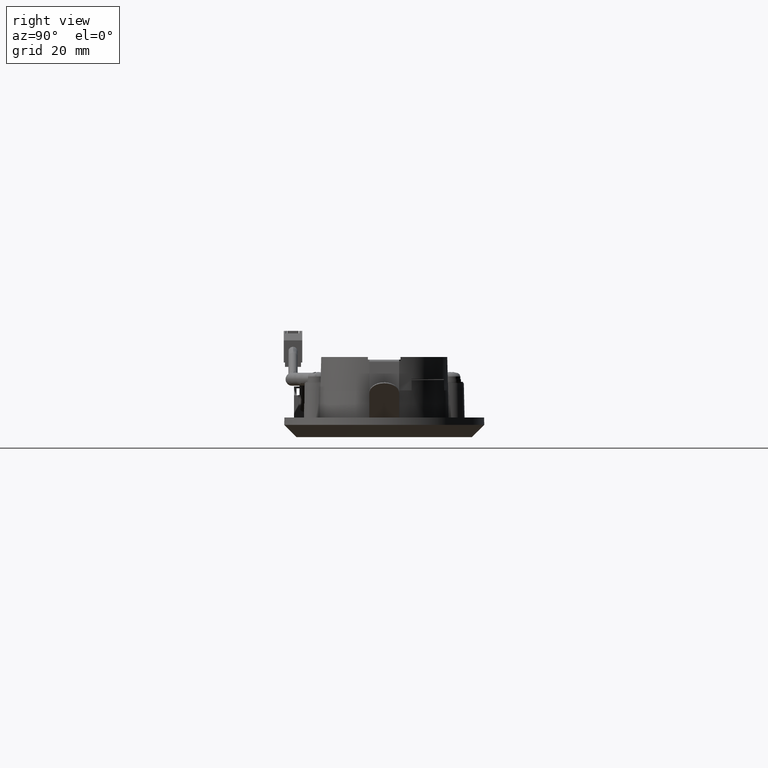
[diagram: clean part render]
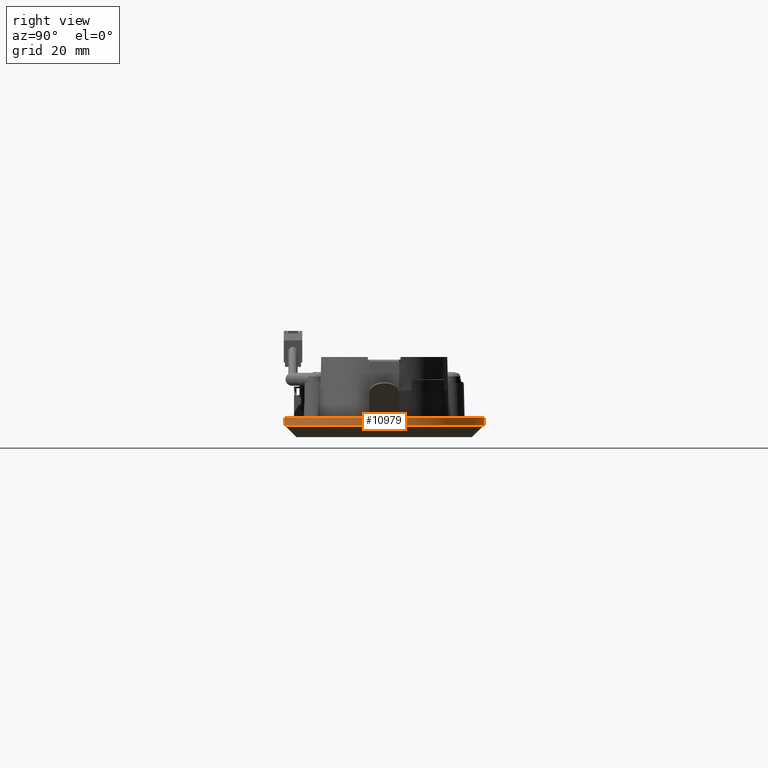
[diagram: same view with one face highlighted and labeled with its STEP entity id]
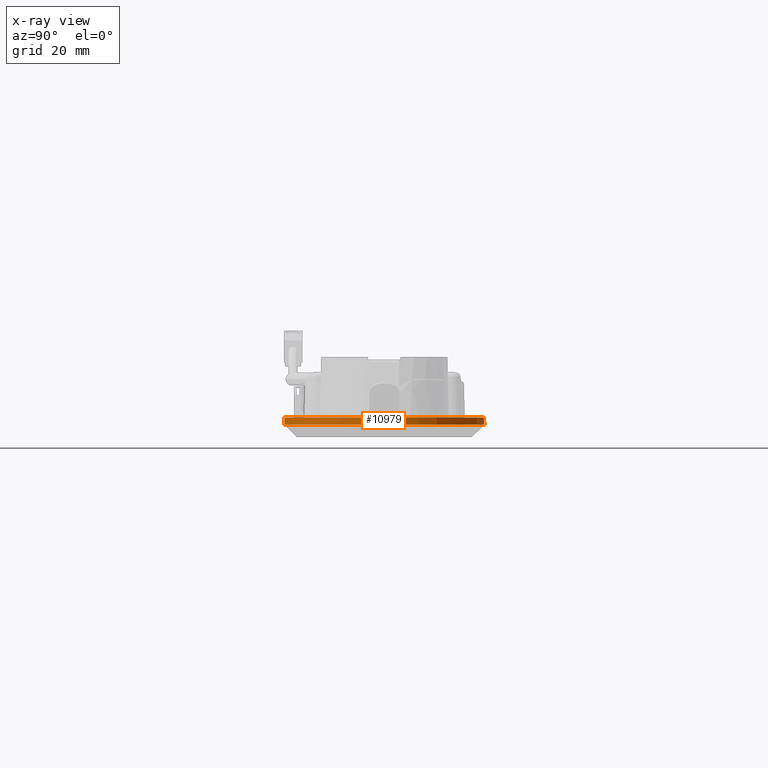
[diagram: x-ray of the same camera — body ghosted, the highlighted face saturated]
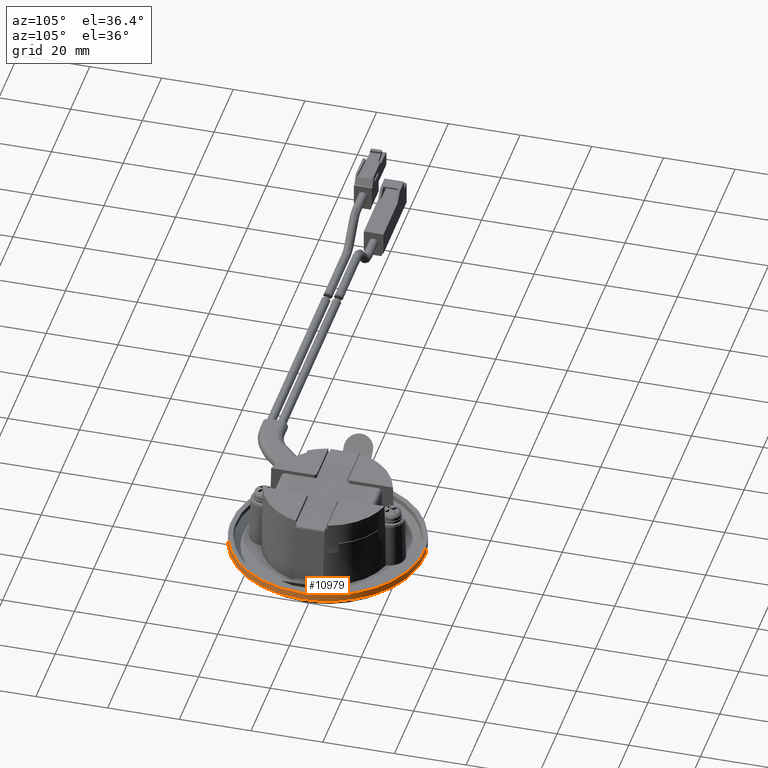
[diagram: same view with one face highlighted and labeled with its STEP entity id]
A machine part, right view. The second image highlights one B-rep face of the part: STEP entity #10979.
The next image is the same camera in x-ray: the body ghosted, the highlighted face saturated — about 0% of this face is hidden behind the body in this view.
A second angle (auxiliary view) of the same face is appended — the face is thin or edge-on in the first view.
In plain terms, the highlighted face is a freeform B-spline surface patch.
Its self-contained STEP definition (entity closure, byte-faithful):
#10802=CARTESIAN_POINT('',(2.118395623529374,-26.916768497372249,3.300001569781463));
#10803=VERTEX_POINT('',#10802);
#10809=CARTESIAN_POINT('',(1.648278269674901,-26.949641479405731,3.300002130458639));
#10810=VERTEX_POINT('',#10809);
#10811=CARTESIAN_POINT('',(2.118395623529374,-26.916768497372257,3.300001569781463));
#10812=CARTESIAN_POINT('',(1.883480397890117,-26.935256455046240,3.300001850200429));
#10813=CARTESIAN_POINT('',(1.648278269674902,-26.949641479405731,3.300002130458638));
#10821=(BOUNDED_CURVE()B_SPLINE_CURVE(2,(#10811,#10812,#10813),.UNSPECIFIED.,.F.,.U.)B_SPLINE_CURVE_WITH_KNOTS((3,3),(0.736331300634926,0.739333169009696),.UNSPECIFIED.)CURVE()GEOMETRIC_REPRESENTATION_ITEM()RATIONAL_B_SPLINE_CURVE((0.969723356176322,0.972855691321902,0.976072484816202))REPRESENTATION_ITEM(''));
#10822=EDGE_CURVE('',#10803,#10810,#10821,.T.);
#10860=CARTESIAN_POINT('',(-1.648278269674565,26.949641479405731,3.300002130458639));
#10861=VERTEX_POINT('',#10860);
#10875=CARTESIAN_POINT('',(26.999999999999371,0.0,3.299999999998135));
#10876=VERTEX_POINT('',#10875);
#10877=CARTESIAN_POINT('',(-1.648278269674565,26.949641479405734,3.300002130458639));
#10878=CARTESIAN_POINT('',(-0.824908413324494,26.999999947581912,3.300002099843240));
#10879=CARTESIAN_POINT('',(3.156398E-009,26.999999948394318,3.300002067298151));
#10880=CARTESIAN_POINT('',(27.000000001529266,26.999999974985069,3.300001002067898));
#10881=CARTESIAN_POINT('',(26.999999999999371,0.0,3.299999999998135));
#10889=(BOUNDED_CURVE()B_SPLINE_CURVE(2,(#10877,#10878,#10879,#10880,#10881),.UNSPECIFIED.,.F.,.U.)B_SPLINE_CURVE_WITH_KNOTS((3,2,3),(0.239333169009696,0.250000000000000,0.500000000000000),.UNSPECIFIED.)CURVE()GEOMETRIC_REPRESENTATION_ITEM()RATIONAL_B_SPLINE_CURVE((0.976072484816202,0.987503030146843,1.0,0.707106781186548,1.0))REPRESENTATION_ITEM(''));
#10890=EDGE_CURVE('',#10861,#10876,#10889,.T.);
#10892=CARTESIAN_POINT('',(26.999999999999371,0.0,3.299999999998135));
#10893=CARTESIAN_POINT('',(27.000000019620629,-24.958543518574711,3.300000776376340));
#10894=CARTESIAN_POINT('',(2.118395623529374,-26.916768497372257,3.300001569781463));
#10902=(BOUNDED_CURVE()B_SPLINE_CURVE(2,(#10892,#10893,#10894),.UNSPECIFIED.,.F.,.U.)B_SPLINE_CURVE_WITH_KNOTS((3,3),(0.500000000000000,0.736331300634926),.UNSPECIFIED.)CURVE()GEOMETRIC_REPRESENTATION_ITEM()RATIONAL_B_SPLINE_CURVE((1.0,0.723120658602667,0.969723356176322))REPRESENTATION_ITEM(''));
#10903=EDGE_CURVE('',#10876,#10803,#10902,.T.);
#10912=CARTESIAN_POINT('',(-1.645181829789739,26.898485148970170,5.349999999998141));
#10913=CARTESIAN_POINT('',(25.253303319180443,28.543666978760083,5.349999999998141));
#10914=CARTESIAN_POINT('',(26.898485148970341,1.645181829789910,5.349999999998141));
#10915=CARTESIAN_POINT('',(28.543666978760253,-25.253303319180272,5.349999999998141));
#10916=CARTESIAN_POINT('',(1.645181829790080,-26.898485148970170,5.349999999998141));
#10917=CARTESIAN_POINT('',(-1.648388785882198,26.950918417600079,3.248749999998135));
#10918=CARTESIAN_POINT('',(25.302529631717888,28.599307203482454,3.248749999998134));
#10919=CARTESIAN_POINT('',(26.950918417600249,1.648388785882369,3.248749999998135));
#10920=CARTESIAN_POINT('',(28.599307203482624,-25.302529631717711,3.248749999998134));
#10921=CARTESIAN_POINT('',(1.648388785882540,-26.950918417600079,3.248749999998135));
#10929=(BOUNDED_SURFACE()B_SPLINE_SURFACE(2,1,((#10912,#10917),(#10913,#10918),(#10914,#10919),(#10915,#10920),(#10916,#10921)),.UNSPECIFIED.,.F.,.F.,.U.)B_SPLINE_SURFACE_WITH_KNOTS((3,2,3),(2,2),(0.0,44.737187580800096,89.474375161600193),(0.0,2.101906538056967),.UNSPECIFIED.)GEOMETRIC_REPRESENTATION_ITEM()RATIONAL_B_SPLINE_SURFACE(((1.0,1.0),(0.707106781186548,0.707106781186548),(1.0,1.0),(0.707106781186548,0.707106781186548),(1.0,1.0)))REPRESENTATION_ITEM('')SURFACE());
#10930=ORIENTED_EDGE('',*,*,#10890,.F.);
#10931=CARTESIAN_POINT('',(-1.645258140505601,26.899732817465701,5.299999999997230));
#10932=VERTEX_POINT('',#10931);
#10933=CARTESIAN_POINT('',(-1.645258140505601,26.899732817465701,5.299999999997230));
#10934=CARTESIAN_POINT('',(-1.648278269674565,26.949641479405731,3.300002130458639));
#10935=QUASI_UNIFORM_CURVE('',1,(#10933,#10934),.UNSPECIFIED.,.F.,.U.);
#10936=EDGE_CURVE('',#10932,#10861,#10935,.T.);
#10937=ORIENTED_EDGE('',*,*,#10936,.F.);
#10938=CARTESIAN_POINT('',(26.949999999999068,0.0,5.299999999998140));
#10939=VERTEX_POINT('',#10938);
#10940=CARTESIAN_POINT('',(-1.645258140505601,26.899732817465704,5.299999999997230));
#10941=CARTESIAN_POINT('',(-0.823396970917546,26.949999999998923,5.299999999997242));
#10942=CARTESIAN_POINT('',(1.724694E-013,26.949999999998919,5.299999999997256));
#10943=CARTESIAN_POINT('',(26.949999999999068,26.949999999998919,5.299999999997712));
#10944=CARTESIAN_POINT('',(26.949999999999068,0.0,5.299999999998140));
#10952=(BOUNDED_CURVE()B_SPLINE_CURVE(2,(#10940,#10941,#10942,#10943,#10944),.UNSPECIFIED.,.F.,.U.)B_SPLINE_CURVE_WITH_KNOTS((3,2,3),(0.239332962241703,0.250000000000000,0.500000000000000),.UNSPECIFIED.)CURVE()GEOMETRIC_REPRESENTATION_ITEM()RATIONAL_B_SPLINE_CURVE((0.976072041672632,0.987502787903070,1.0,0.707106781186548,1.0))REPRESENTATION_ITEM(''));
#10953=EDGE_CURVE('',#10932,#10939,#10952,.T.);
#10954=ORIENTED_EDGE('',*,*,#10953,.T.);
#10955=CARTESIAN_POINT('',(1.645258140505951,-26.899732817465701,5.299999999997230));
#10956=VERTEX_POINT('',#10955);
#10957=CARTESIAN_POINT('',(26.949999999999068,0.0,5.299999999998140));
#10958=CARTESIAN_POINT('',(26.949999999999068,-25.352028503068311,5.299999999997684));
#10959=CARTESIAN_POINT('',(1.645258140505952,-26.899732817465697,5.299999999997230));
#10967=(BOUNDED_CURVE()B_SPLINE_CURVE(2,(#10957,#10958,#10959),.UNSPECIFIED.,.F.,.U.)B_SPLINE_CURVE_WITH_KNOTS((3,3),(0.500000000000000,0.739332962241702),.UNSPECIFIED.)CURVE()GEOMETRIC_REPRESENTATION_ITEM()RATIONAL_B_SPLINE_CURVE((1.0,0.719603993283477,0.976072041672632))REPRESENTATION_ITEM(''));
#10968=EDGE_CURVE('',#10939,#10956,#10967,.T.);
#10969=ORIENTED_EDGE('',*,*,#10968,.T.);
#10970=CARTESIAN_POINT('',(1.645258140505951,-26.899732817465701,5.299999999997230));
#10971=CARTESIAN_POINT('',(1.648278269674901,-26.949641479405731,3.300002130458639));
#10972=QUASI_UNIFORM_CURVE('',1,(#10970,#10971),.UNSPECIFIED.,.F.,.U.);
#10973=EDGE_CURVE('',#10956,#10810,#10972,.T.);
#10974=ORIENTED_EDGE('',*,*,#10973,.T.);
#10975=ORIENTED_EDGE('',*,*,#10822,.F.);
#10976=ORIENTED_EDGE('',*,*,#10903,.F.);
#10977=EDGE_LOOP('',(#10930,#10937,#10954,#10969,#10974,#10975,#10976));
#10978=FACE_OUTER_BOUND('',#10977,.T.);
#10979=ADVANCED_FACE('',(#10978),#10929,.T.);